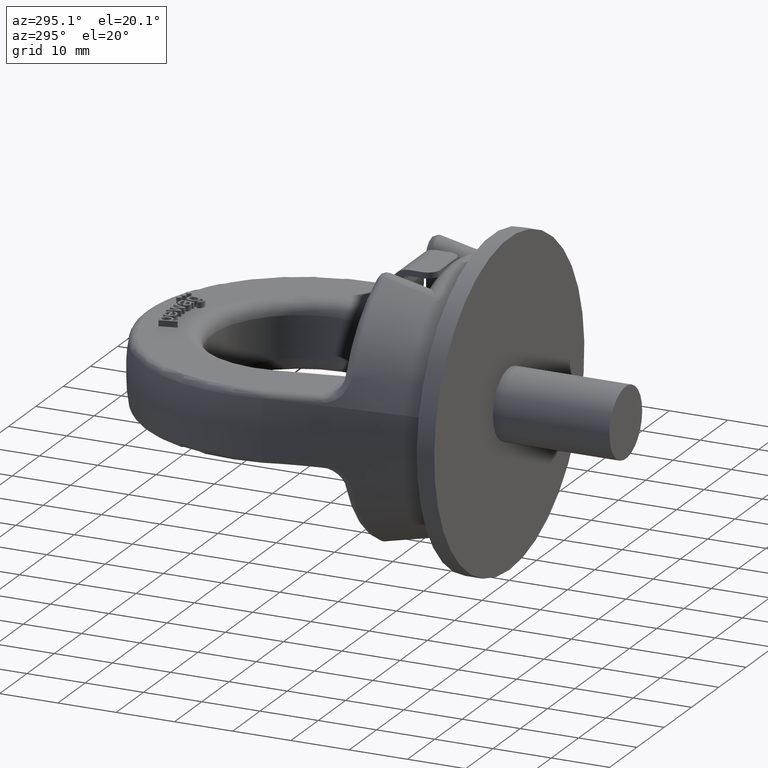
[diagram: clean part render]
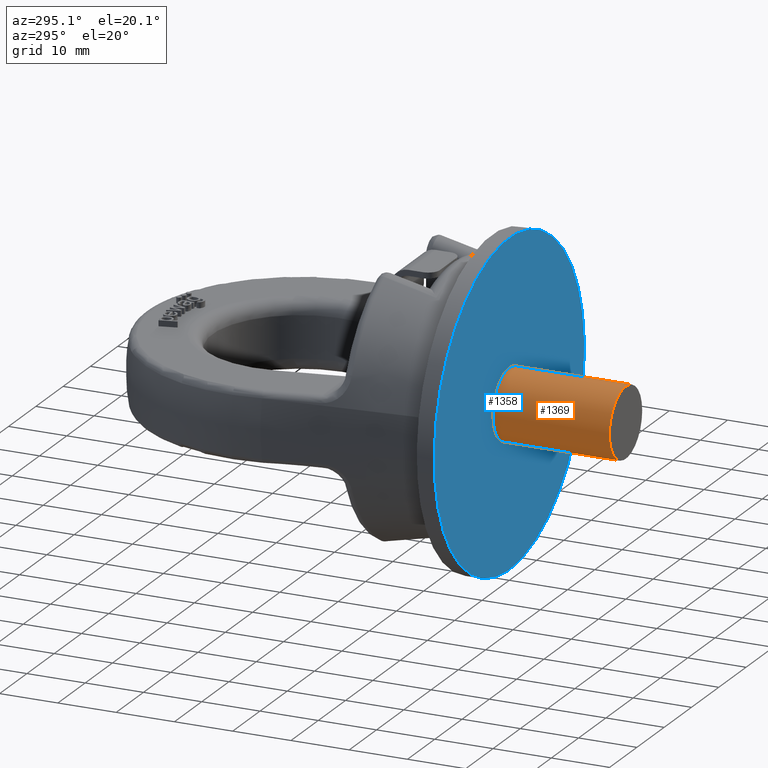
[diagram: same view with the hole feature highlighted: cylindrical wall and planar end face, labeled with their STEP entity ids]
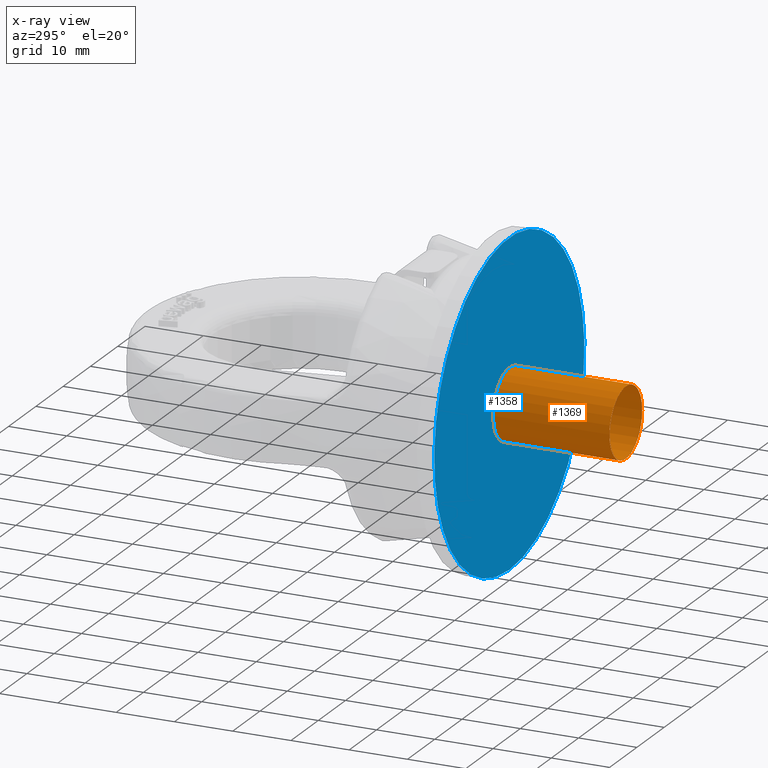
[diagram: x-ray of the same camera — body ghosted, the hole faces saturated]
A machine part, auxiliary view. The highlighted faces form one hole feature of diameter 12 mm: the cylindrical wall (entity #1369, orange) and its adjacent planar end face (entity #1358, blue) — they share a circular edge in the B-rep.
The next image is the same camera in x-ray (body ghosted, the hole faces saturated) — the bore reads through the body.
Wall:
#1094=CYLINDRICAL_SURFACE('',#5221,6.);
#1369=ADVANCED_FACE('',(#1814,#1815),#1094,.T.);
#1729=CIRCLE('',#5206,6.);
#1730=CIRCLE('',#5220,6.);
#1814=FACE_BOUND('',#1890,.T.);
#1815=FACE_BOUND('',#1891,.T.);
#1890=EDGE_LOOP('',(#2944));
#1891=EDGE_LOOP('',(#2945));
#2944=ORIENTED_EDGE('',*,*,#4474,.T.);
#2945=ORIENTED_EDGE('',*,*,#4455,.F.);
#4058=VERTEX_POINT('',#6937);
#4065=VERTEX_POINT('',#6974);
#4455=EDGE_CURVE('',#4058,#4058,#1729,.T.);
#4474=EDGE_CURVE('',#4065,#4065,#1730,.T.);
#5206=AXIS2_PLACEMENT_3D('',#6936,#5586,#5587);
#5220=AXIS2_PLACEMENT_3D('',#6973,#5630,#5631);
#5221=AXIS2_PLACEMENT_3D('',#6975,#5632,#5633);
#5586=DIRECTION('',(0.,1.,0.));
#5587=DIRECTION('',(1.,0.,6.12323399573677E-17));
#5630=DIRECTION('',(0.,1.,0.));
#5631=DIRECTION('',(1.,0.,6.12323399573677E-17));
#5632=DIRECTION('',(0.,1.,0.));
#5633=DIRECTION('',(0.,0.,1.));
#6936=CARTESIAN_POINT('',(0.,0.,0.));
#6937=CARTESIAN_POINT('',(6.,0.,3.67394039744206E-16));
#6973=CARTESIAN_POINT('',(0.,-20.,0.));
#6974=CARTESIAN_POINT('',(6.,-20.,3.67394039744206E-16));
#6975=CARTESIAN_POINT('',(0.,-20.,0.));
End face:
#1358=ADVANCED_FACE('',(#1810,#1811),#1594,.F.);
#1594=PLANE('',#5207);
#1727=CIRCLE('',#5203,27.5);
#1729=CIRCLE('',#5206,6.);
#1810=FACE_BOUND('',#1877,.T.);
#1811=FACE_BOUND('',#1878,.T.);
#1877=EDGE_LOOP('',(#2896));
#1878=EDGE_LOOP('',(#2897));
#2896=ORIENTED_EDGE('',*,*,#4453,.T.);
#2897=ORIENTED_EDGE('',*,*,#4455,.T.);
#4056=VERTEX_POINT('',#6932);
#4058=VERTEX_POINT('',#6937);
#4453=EDGE_CURVE('',#4056,#4056,#1727,.T.);
#4455=EDGE_CURVE('',#4058,#4058,#1729,.T.);
#5203=AXIS2_PLACEMENT_3D('',#6931,#5580,#5581);
#5206=AXIS2_PLACEMENT_3D('',#6936,#5586,#5587);
#5207=AXIS2_PLACEMENT_3D('',#6938,#5588,#5589);
#5580=DIRECTION('',(0.,-1.,0.));
#5581=DIRECTION('',(0.,0.,-1.));
#5586=DIRECTION('',(0.,1.,0.));
#5587=DIRECTION('',(1.,0.,6.12323399573677E-17));
#5588=DIRECTION('',(0.,1.,0.));
#5589=DIRECTION('',(0.,0.,1.));
#6931=CARTESIAN_POINT('',(0.,-3.46944695195361E-15,0.));
#6932=CARTESIAN_POINT('',(0.,-3.46944695195361E-15,-27.5));
#6936=CARTESIAN_POINT('',(0.,0.,0.));
#6937=CARTESIAN_POINT('',(6.,0.,3.67394039744206E-16));
#6938=CARTESIAN_POINT('',(-27.5,-8.67361737988404E-16,0.));